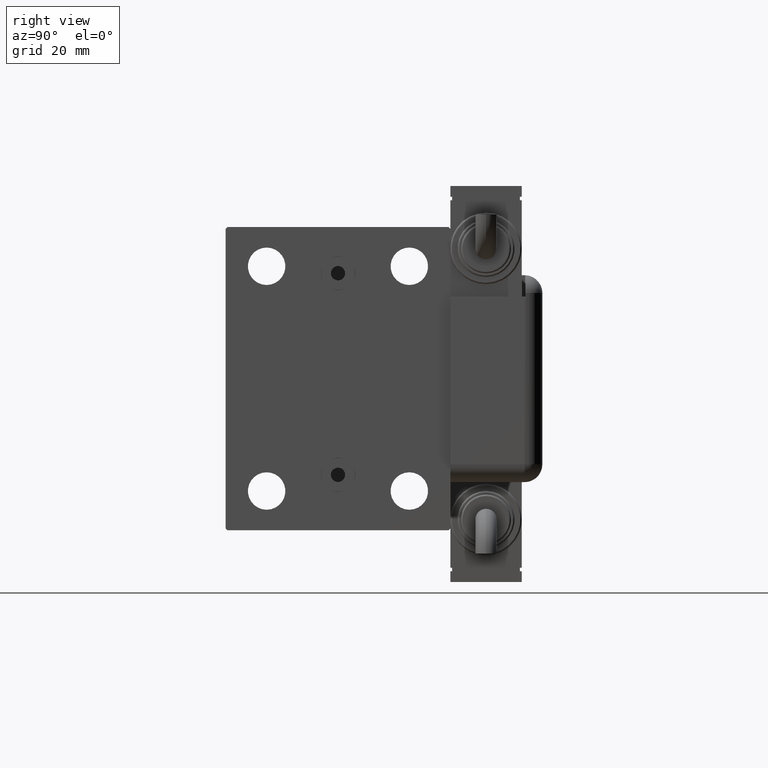
[diagram: clean part render]
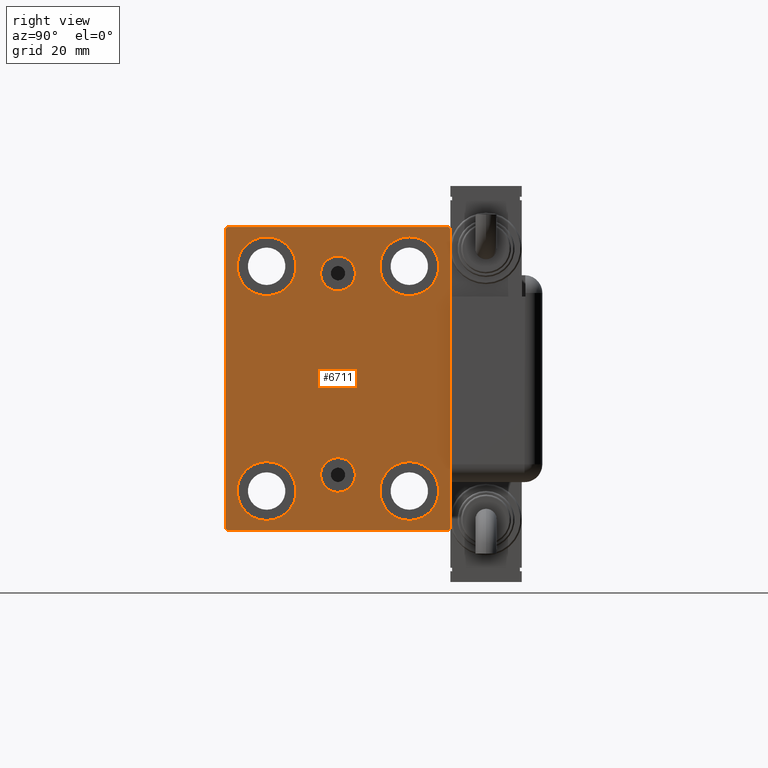
[diagram: same view with one face highlighted and labeled with its STEP entity id]
A machine part, right view. The second image highlights one B-rep face of the part: STEP entity #6711.
In plain terms, the highlighted planar face has unit normal (1, 0, 0).
Its self-contained STEP definition (entity closure, byte-faithful):
#286 = EDGE_CURVE ( 'NONE', #39167, #44961, #28694, .T. ) ;
#441 = EDGE_CURVE ( 'NONE', #44961, #39167, #56810, .T. ) ;
#1522 = DIRECTION ( 'NONE',  ( -1.000000000000000000, -0.000000000000000000, -0.000000000000000000 ) ) ;
#1550 = EDGE_CURVE ( 'NONE', #29595, #16336, #4214, .T. ) ;
#1817 = DIRECTION ( 'NONE',  ( 0.000000000000000000, 0.000000000000000000, 1.000000000000000000 ) ) ;
#2125 = DIRECTION ( 'NONE',  ( -1.000000000000000000, -0.000000000000000000, -0.000000000000000000 ) ) ;
#2558 = AXIS2_PLACEMENT_3D ( 'NONE', #40221, #35673, #45364 ) ;
#2691 = ORIENTED_EDGE ( 'NONE', *, *, #57312, .T. ) ;
#3239 = ORIENTED_EDGE ( 'NONE', *, *, #20807, .T. ) ;
#3979 = ORIENTED_EDGE ( 'NONE', *, *, #34251, .T. ) ;
#4214 = LINE ( 'NONE', #23292, #56908 ) ;
#4250 = CARTESIAN_POINT ( 'NONE',  ( 88.00000000000000000, 20.00000000000000355, 39.74999999999999289 ) ) ;
#4298 = CARTESIAN_POINT ( 'NONE',  ( 88.00000000000000000, -31.00000000000000000, -42.50000000000000711 ) ) ;
#4313 = CARTESIAN_POINT ( 'NONE',  ( 88.00000000000000000, 19.99999999999999645, -31.49999999999999289 ) ) ;
#4560 = AXIS2_PLACEMENT_3D ( 'NONE', #46562, #51724, #10470 ) ;
#4579 = CARTESIAN_POINT ( 'NONE',  ( 88.00000000000000000, 3.901724702083465828E-15, -22.13999999999999346 ) ) ;
#4731 = DIRECTION ( 'NONE',  ( 0.000000000000000000, 0.000000000000000000, 1.000000000000000000 ) ) ;
#5336 = CARTESIAN_POINT ( 'NONE',  ( 88.00000000000000000, 3.306546357697852550E-15, -26.99999999999998934 ) ) ;
#5706 = EDGE_CURVE ( 'NONE', #24302, #33268, #39498, .T. ) ;
#5873 = LINE ( 'NONE', #34345, #48937 ) ;
#6711 = ADVANCED_FACE ( 'NONE', ( #39514, #20116, #34966, #15275, #20710, #11613, #53481 ), #30402, .T. ) ;
#7178 = CARTESIAN_POINT ( 'NONE',  ( 88.00000000000000000, -19.99999999999999645, 39.74999999999999289 ) ) ;
#7709 = CARTESIAN_POINT ( 'NONE',  ( 88.00000000000000000, 31.50000000000000000, 42.50000000000000711 ) ) ;
#8037 = VECTOR ( 'NONE', #40356, 1000.000000000000000 ) ;
#8045 = AXIS2_PLACEMENT_3D ( 'NONE', #52180, #1522, #57038 ) ;
#8246 = EDGE_CURVE ( 'NONE', #12241, #8819, #35791, .T. ) ;
#8288 = DIRECTION ( 'NONE',  ( 0.000000000000000000, -1.000000000000000000, -2.202823461557850341E-16 ) ) ;
#8373 = DIRECTION ( 'NONE',  ( 1.000000000000000000, 0.000000000000000000, 0.000000000000000000 ) ) ;
#8819 = VERTEX_POINT ( 'NONE', #9533 ) ;
#9533 = CARTESIAN_POINT ( 'NONE',  ( 88.00000000000000000, 19.99999999999999645, -23.24999999999999289 ) ) ;
#10129 = VERTEX_POINT ( 'NONE', #4579 ) ;
#10212 = DIRECTION ( 'NONE',  ( -0.000000000000000000, 0.7071067811865573427, -0.7071067811865378028 ) ) ;
#10470 = DIRECTION ( 'NONE',  ( 0.000000000000000000, 0.000000000000000000, 1.000000000000000000 ) ) ;
#10510 = LINE ( 'NONE', #19311, #20046 ) ;
#10606 = EDGE_CURVE ( 'NONE', #18127, #38921, #26031, .T. ) ;
#11120 = ORIENTED_EDGE ( 'NONE', *, *, #31338, .T. ) ;
#11252 = EDGE_CURVE ( 'NONE', #38921, #18127, #40631, .T. ) ;
#11293 = DIRECTION ( 'NONE',  ( 0.000000000000000000, -1.632680918566406300E-16, 1.000000000000000000 ) ) ;
#11462 = ORIENTED_EDGE ( 'NONE', *, *, #5706, .T. ) ;
#11503 = VECTOR ( 'NONE', #29196, 1000.000000000000000 ) ;
#11613 = FACE_BOUND ( 'NONE', #51541, .T. ) ;
#12241 = VERTEX_POINT ( 'NONE', #52714 ) ;
#12406 = DIRECTION ( 'NONE',  ( 0.000000000000000000, 0.000000000000000000, -1.000000000000000000 ) ) ;
#12526 = ORIENTED_EDGE ( 'NONE', *, *, #29408, .F. ) ;
#13190 = ORIENTED_EDGE ( 'NONE', *, *, #44676, .T. ) ;
#14015 = ORIENTED_EDGE ( 'NONE', *, *, #52527, .T. ) ;
#14665 = EDGE_LOOP ( 'NONE', ( #16511, #21506 ) ) ;
#14696 = CARTESIAN_POINT ( 'NONE',  ( 88.00000000000000000, 36.74999999999999289, 36.74999999999999289 ) ) ;
#15275 = FACE_BOUND ( 'NONE', #14665, .T. ) ;
#15311 = EDGE_LOOP ( 'NONE', ( #20128, #14015 ) ) ;
#15443 = AXIS2_PLACEMENT_3D ( 'NONE', #4313, #17938, #54955 ) ;
#15872 = CARTESIAN_POINT ( 'NONE',  ( 88.00000000000000000, 0.000000000000000000, 0.000000000000000000 ) ) ;
#16336 = VERTEX_POINT ( 'NONE', #22800 ) ;
#16511 = ORIENTED_EDGE ( 'NONE', *, *, #286, .T. ) ;
#16871 = DIRECTION ( 'NONE',  ( 0.000000000000000000, 0.000000000000000000, -1.000000000000000000 ) ) ;
#17076 = LINE ( 'NONE', #7709, #59123 ) ;
#17938 = DIRECTION ( 'NONE',  ( -1.000000000000000000, -0.000000000000000000, -0.000000000000000000 ) ) ;
#18127 = VERTEX_POINT ( 'NONE', #31147 ) ;
#18660 = AXIS2_PLACEMENT_3D ( 'NONE', #49269, #58674, #31058 ) ;
#19302 = AXIS2_PLACEMENT_3D ( 'NONE', #15872, #52279, #20407 ) ;
#19311 = CARTESIAN_POINT ( 'NONE',  ( 88.00000000000000000, -36.74999999999958078, -36.75000000000059686 ) ) ;
#19728 = CARTESIAN_POINT ( 'NONE',  ( 88.00000000000000000, 19.99999999999999645, -31.49999999999999289 ) ) ;
#19909 = VERTEX_POINT ( 'NONE', #52971 ) ;
#20046 = VECTOR ( 'NONE', #10212, 1000.000000000000000 ) ;
#20055 = VERTEX_POINT ( 'NONE', #22289 ) ;
#20116 = FACE_BOUND ( 'NONE', #49908, .T. ) ;
#20128 = ORIENTED_EDGE ( 'NONE', *, *, #8246, .T. ) ;
#20149 = CARTESIAN_POINT ( 'NONE',  ( 88.00000000000000000, 31.50000000000001421, -42.00000000000000711 ) ) ;
#20407 = DIRECTION ( 'NONE',  ( 0.000000000000000000, 0.000000000000000000, -1.000000000000000000 ) ) ;
#20710 = FACE_BOUND ( 'NONE', #54772, .T. ) ;
#20807 = EDGE_CURVE ( 'NONE', #20055, #30892, #17076, .T. ) ;
#21506 = ORIENTED_EDGE ( 'NONE', *, *, #441, .T. ) ;
#22289 = CARTESIAN_POINT ( 'NONE',  ( 88.00000000000000000, 30.99999999999998579, 42.50000000000000711 ) ) ;
#22647 = CIRCLE ( 'NONE', #41041, 8.250000000000000000 ) ;
#22800 = CARTESIAN_POINT ( 'NONE',  ( 88.00000000000000000, 31.00000000000002842, -42.50000000000000711 ) ) ;
#23138 = ORIENTED_EDGE ( 'NONE', *, *, #10606, .F. ) ;
#23292 = CARTESIAN_POINT ( 'NONE',  ( 88.00000000000000000, -31.50000000000000000, -42.50000000000000711 ) ) ;
#23557 = CIRCLE ( 'NONE', #57484, 8.249999999999992895 ) ;
#23718 = VERTEX_POINT ( 'NONE', #50836 ) ;
#24302 = VERTEX_POINT ( 'NONE', #27032 ) ;
#24452 = AXIS2_PLACEMENT_3D ( 'NONE', #5336, #46254, #4731 ) ;
#26024 = ORIENTED_EDGE ( 'NONE', *, *, #11252, .F. ) ;
#26031 = CIRCLE ( 'NONE', #43477, 4.859999999999999432 ) ;
#26151 = VERTEX_POINT ( 'NONE', #43955 ) ;
#26158 = ORIENTED_EDGE ( 'NONE', *, *, #1550, .T. ) ;
#26478 = CARTESIAN_POINT ( 'NONE',  ( 88.00000000000000000, 20.00000000000000355, 23.25000000000000355 ) ) ;
#26544 = ORIENTED_EDGE ( 'NONE', *, *, #32786, .T. ) ;
#26842 = CARTESIAN_POINT ( 'NONE',  ( 88.00000000000000000, -3.571693674697836683E-15, 29.50000000000001066 ) ) ;
#27032 = CARTESIAN_POINT ( 'NONE',  ( 88.00000000000000000, -31.50000000000000000, 41.99999999999999289 ) ) ;
#27935 = CARTESIAN_POINT ( 'NONE',  ( 88.00000000000000000, -20.00000000000000355, -31.49999999999999289 ) ) ;
#28154 = DIRECTION ( 'NONE',  ( -1.000000000000000000, -0.000000000000000000, -0.000000000000000000 ) ) ;
#28483 = VECTOR ( 'NONE', #33198, 1000.000000000000114 ) ;
#28694 = CIRCLE ( 'NONE', #2558, 8.249999999999992895 ) ;
#29196 = DIRECTION ( 'NONE',  ( 0.000000000000000000, 0.000000000000000000, -1.000000000000000000 ) ) ;
#29394 = CIRCLE ( 'NONE', #53664, 8.250000000000000000 ) ;
#29405 = DIRECTION ( 'NONE',  ( 0.000000000000000000, -0.7071067811865378028, -0.7071067811865573427 ) ) ;
#29408 = EDGE_CURVE ( 'NONE', #26151, #10129, #33178, .T. ) ;
#29595 = VERTEX_POINT ( 'NONE', #4298 ) ;
#29784 = EDGE_CURVE ( 'NONE', #30892, #24302, #34564, .T. ) ;
#30402 = PLANE ( 'NONE',  #19302 ) ;
#30485 = EDGE_CURVE ( 'NONE', #10129, #26151, #58423, .T. ) ;
#30892 = VERTEX_POINT ( 'NONE', #50242 ) ;
#31058 = DIRECTION ( 'NONE',  ( 0.000000000000000000, 0.000000000000000000, 1.000000000000000000 ) ) ;
#31147 = CARTESIAN_POINT ( 'NONE',  ( 88.00000000000000000, -3.571693674697836683E-15, 24.64000000000001123 ) ) ;
#31338 = EDGE_CURVE ( 'NONE', #16336, #34322, #32151, .T. ) ;
#31887 = DIRECTION ( 'NONE',  ( -1.000000000000000000, -0.000000000000000000, -0.000000000000000000 ) ) ;
#32151 = LINE ( 'NONE', #55219, #8037 ) ;
#32492 = DIRECTION ( 'NONE',  ( 0.000000000000000000, 0.000000000000000000, 1.000000000000000000 ) ) ;
#32786 = EDGE_CURVE ( 'NONE', #58413, #19909, #22647, .T. ) ;
#33178 = CIRCLE ( 'NONE', #24452, 4.859999999999995879 ) ;
#33198 = DIRECTION ( 'NONE',  ( -0.000000000000000000, -0.7071067811865474617, 0.7071067811865474617 ) ) ;
#33268 = VERTEX_POINT ( 'NONE', #58748 ) ;
#34251 = EDGE_CURVE ( 'NONE', #23718, #20055, #51401, .T. ) ;
#34322 = VERTEX_POINT ( 'NONE', #20149 ) ;
#34345 = CARTESIAN_POINT ( 'NONE',  ( 88.00000000000000000, 31.50000000000001421, -42.50000000000000711 ) ) ;
#34464 = VERTEX_POINT ( 'NONE', #26478 ) ;
#34564 = LINE ( 'NONE', #38809, #47720 ) ;
#34966 = FACE_BOUND ( 'NONE', #15311, .T. ) ;
#35673 = DIRECTION ( 'NONE',  ( -1.000000000000000000, -0.000000000000000000, -0.000000000000000000 ) ) ;
#35791 = CIRCLE ( 'NONE', #15443, 8.250000000000000000 ) ;
#35932 = ORIENTED_EDGE ( 'NONE', *, *, #30485, .F. ) ;
#37361 = ORIENTED_EDGE ( 'NONE', *, *, #53157, .T. ) ;
#37621 = DIRECTION ( 'NONE',  ( 0.000000000000000000, 0.000000000000000000, 1.000000000000000000 ) ) ;
#38809 = CARTESIAN_POINT ( 'NONE',  ( 88.00000000000000000, -36.75000000000044054, 36.74999999999942446 ) ) ;
#38921 = VERTEX_POINT ( 'NONE', #49550 ) ;
#39167 = VERTEX_POINT ( 'NONE', #58590 ) ;
#39498 = LINE ( 'NONE', #57121, #11503 ) ;
#39514 = FACE_BOUND ( 'NONE', #39973, .T. ) ;
#39973 = EDGE_LOOP ( 'NONE', ( #23138, #26024 ) ) ;
#39999 = CARTESIAN_POINT ( 'NONE',  ( 88.00000000000000000, -3.571693674697836683E-15, 29.50000000000001066 ) ) ;
#40221 = CARTESIAN_POINT ( 'NONE',  ( 88.00000000000000000, -19.99999999999999645, 31.50000000000000000 ) ) ;
#40356 = DIRECTION ( 'NONE',  ( -0.000000000000000000, 0.7071067811865378028, 0.7071067811865573427 ) ) ;
#40631 = CIRCLE ( 'NONE', #55147, 4.859999999999999432 ) ;
#41041 = AXIS2_PLACEMENT_3D ( 'NONE', #43351, #2125, #1817 ) ;
#41091 = EDGE_LOOP ( 'NONE', ( #3239, #49978, #11462, #13190, #26158, #11120, #2691, #3979 ) ) ;
#42908 = CIRCLE ( 'NONE', #8045, 8.249999999999992895 ) ;
#43351 = CARTESIAN_POINT ( 'NONE',  ( 88.00000000000000000, -20.00000000000000355, -31.49999999999999289 ) ) ;
#43411 = VERTEX_POINT ( 'NONE', #4250 ) ;
#43477 = AXIS2_PLACEMENT_3D ( 'NONE', #26842, #8373, #16871 ) ;
#43955 = CARTESIAN_POINT ( 'NONE',  ( 88.00000000000000000, 3.306546357697852550E-15, -31.85999999999998522 ) ) ;
#44676 = EDGE_CURVE ( 'NONE', #33268, #29595, #10510, .T. ) ;
#44961 = VERTEX_POINT ( 'NONE', #7178 ) ;
#45364 = DIRECTION ( 'NONE',  ( 0.000000000000000000, 0.000000000000000000, 1.000000000000000000 ) ) ;
#46057 = CARTESIAN_POINT ( 'NONE',  ( 88.00000000000000000, 20.00000000000000355, 31.50000000000000000 ) ) ;
#46254 = DIRECTION ( 'NONE',  ( 1.000000000000000000, 0.000000000000000000, -0.000000000000000000 ) ) ;
#46562 = CARTESIAN_POINT ( 'NONE',  ( 88.00000000000000000, -19.99999999999999645, 31.50000000000000000 ) ) ;
#47174 = EDGE_CURVE ( 'NONE', #34464, #43411, #42908, .T. ) ;
#47720 = VECTOR ( 'NONE', #29405, 1000.000000000000000 ) ;
#47754 = AXIS2_PLACEMENT_3D ( 'NONE', #19728, #52492, #37621 ) ;
#48397 = EDGE_CURVE ( 'NONE', #43411, #34464, #23557, .T. ) ;
#48933 = ORIENTED_EDGE ( 'NONE', *, *, #47174, .T. ) ;
#48937 = VECTOR ( 'NONE', #11293, 1000.000000000000000 ) ;
#49269 = CARTESIAN_POINT ( 'NONE',  ( 88.00000000000000000, 3.306546357697852550E-15, -26.99999999999998934 ) ) ;
#49550 = CARTESIAN_POINT ( 'NONE',  ( 88.00000000000000000, -2.976515330312223011E-15, 34.36000000000000654 ) ) ;
#49794 = CARTESIAN_POINT ( 'NONE',  ( 88.00000000000000000, -20.00000000000000355, -39.74999999999999289 ) ) ;
#49908 = EDGE_LOOP ( 'NONE', ( #12526, #35932 ) ) ;
#49978 = ORIENTED_EDGE ( 'NONE', *, *, #29784, .T. ) ;
#50242 = CARTESIAN_POINT ( 'NONE',  ( 88.00000000000000000, -31.00000000000001421, 42.49999999999999289 ) ) ;
#50836 = CARTESIAN_POINT ( 'NONE',  ( 88.00000000000000000, 31.50000000000000000, 41.99999999999999289 ) ) ;
#51401 = LINE ( 'NONE', #14696, #28483 ) ;
#51541 = EDGE_LOOP ( 'NONE', ( #26544, #37361 ) ) ;
#51724 = DIRECTION ( 'NONE',  ( -1.000000000000000000, -0.000000000000000000, -0.000000000000000000 ) ) ;
#52180 = CARTESIAN_POINT ( 'NONE',  ( 88.00000000000000000, 20.00000000000000355, 31.50000000000000000 ) ) ;
#52279 = DIRECTION ( 'NONE',  ( 1.000000000000000000, 0.000000000000000000, 0.000000000000000000 ) ) ;
#52492 = DIRECTION ( 'NONE',  ( -1.000000000000000000, -0.000000000000000000, -0.000000000000000000 ) ) ;
#52527 = EDGE_CURVE ( 'NONE', #8819, #12241, #55523, .T. ) ;
#52714 = CARTESIAN_POINT ( 'NONE',  ( 88.00000000000000000, 19.99999999999999645, -39.74999999999999289 ) ) ;
#52971 = CARTESIAN_POINT ( 'NONE',  ( 88.00000000000000000, -20.00000000000000355, -23.24999999999999289 ) ) ;
#53115 = ORIENTED_EDGE ( 'NONE', *, *, #48397, .T. ) ;
#53157 = EDGE_CURVE ( 'NONE', #19909, #58413, #29394, .T. ) ;
#53481 = FACE_OUTER_BOUND ( 'NONE', #41091, .T. ) ;
#53664 = AXIS2_PLACEMENT_3D ( 'NONE', #27935, #31887, #32492 ) ;
#53975 = DIRECTION ( 'NONE',  ( 1.000000000000000000, 0.000000000000000000, 0.000000000000000000 ) ) ;
#54772 = EDGE_LOOP ( 'NONE', ( #48933, #53115 ) ) ;
#54955 = DIRECTION ( 'NONE',  ( 0.000000000000000000, 0.000000000000000000, 1.000000000000000000 ) ) ;
#55147 = AXIS2_PLACEMENT_3D ( 'NONE', #39999, #53975, #12406 ) ;
#55219 = CARTESIAN_POINT ( 'NONE',  ( 88.00000000000000000, 36.75000000000045475, -36.74999999999943867 ) ) ;
#55478 = DIRECTION ( 'NONE',  ( 0.000000000000000000, 0.000000000000000000, 1.000000000000000000 ) ) ;
#55523 = CIRCLE ( 'NONE', #47754, 8.250000000000000000 ) ;
#55754 = DIRECTION ( 'NONE',  ( 0.000000000000000000, 1.000000000000000000, 0.000000000000000000 ) ) ;
#56810 = CIRCLE ( 'NONE', #4560, 8.249999999999992895 ) ;
#56908 = VECTOR ( 'NONE', #55754, 1000.000000000000000 ) ;
#57038 = DIRECTION ( 'NONE',  ( 0.000000000000000000, 0.000000000000000000, 1.000000000000000000 ) ) ;
#57121 = CARTESIAN_POINT ( 'NONE',  ( 88.00000000000000000, -31.50000000000000000, 42.49999999999999289 ) ) ;
#57312 = EDGE_CURVE ( 'NONE', #34322, #23718, #5873, .T. ) ;
#57484 = AXIS2_PLACEMENT_3D ( 'NONE', #46057, #28154, #55478 ) ;
#58413 = VERTEX_POINT ( 'NONE', #49794 ) ;
#58423 = CIRCLE ( 'NONE', #18660, 4.859999999999995879 ) ;
#58590 = CARTESIAN_POINT ( 'NONE',  ( 88.00000000000000000, -19.99999999999999645, 23.25000000000000355 ) ) ;
#58674 = DIRECTION ( 'NONE',  ( 1.000000000000000000, 0.000000000000000000, -0.000000000000000000 ) ) ;
#58748 = CARTESIAN_POINT ( 'NONE',  ( 88.00000000000000000, -31.50000000000000000, -42.00000000000002132 ) ) ;
#59123 = VECTOR ( 'NONE', #8288, 1000.000000000000000 ) ;